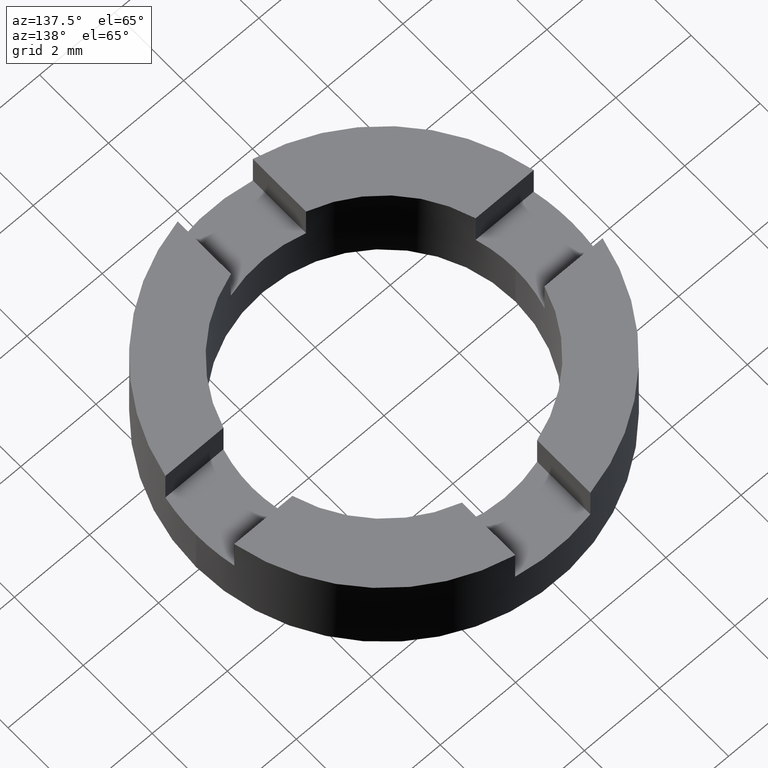
[diagram: clean part render]
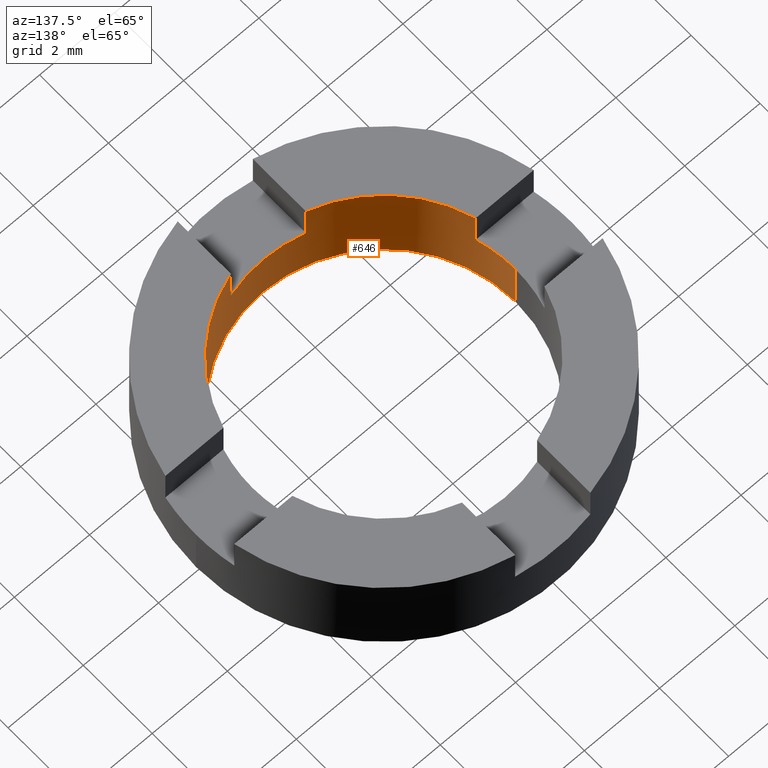
[diagram: same view with one face highlighted and labeled with its STEP entity id]
A machine part, auxiliary view. The second image highlights one B-rep face of the part: STEP entity #646.
In plain terms, the highlighted cylindrical surface (partial cylindrical patch) has radius 3.5 mm, axis along (-0, -0, -1).
Its self-contained STEP definition (entity closure, byte-faithful):
#3 = FACE_OUTER_BOUND ( 'NONE', #324, .T. ) ;
#6 = CARTESIAN_POINT ( 'NONE',  ( -3.354101966249594557, -1.000000000000301981, 2.500000000000000000 ) ) ;
#9 = CARTESIAN_POINT ( 'NONE',  ( 3.354101966249698030, -0.9999999999999547029, 2.500000000000000000 ) ) ;
#11 = DIRECTION ( 'NONE',  ( -1.000000000000000000, 0.000000000000000000, 0.000000000000000000 ) ) ;
#14 = DIRECTION ( 'NONE',  ( -0.000000000000000000, -0.000000000000000000, -1.000000000000000000 ) ) ;
#19 = DIRECTION ( 'NONE',  ( 1.000000000000000000, 0.000000000000000000, 0.000000000000000000 ) ) ;
#28 = VERTEX_POINT ( 'NONE', #9 ) ;
#37 = CARTESIAN_POINT ( 'NONE',  ( -3.500000000000000000, 0.000000000000000000, 0.000000000000000000 ) ) ;
#38 = ORIENTED_EDGE ( 'NONE', *, *, #468, .F. ) ;
#60 = VERTEX_POINT ( 'NONE', #317 ) ;
#65 = DIRECTION ( 'NONE',  ( 0.000000000000000000, 0.000000000000000000, 1.000000000000000000 ) ) ;
#66 = ORIENTED_EDGE ( 'NONE', *, *, #218, .F. ) ;
#71 = CARTESIAN_POINT ( 'NONE',  ( 0.000000000000000000, 0.000000000000000000, 1.500000000000000000 ) ) ;
#72 = DIRECTION ( 'NONE',  ( -0.000000000000000000, -0.000000000000000000, -1.000000000000000000 ) ) ;
#73 = CIRCLE ( 'NONE', #136, 3.500000000000000000 ) ;
#84 = VECTOR ( 'NONE', #14, 1000.000000000000000 ) ;
#96 = ORIENTED_EDGE ( 'NONE', *, *, #275, .F. ) ;
#98 = VERTEX_POINT ( 'NONE', #37 ) ;
#99 = AXIS2_PLACEMENT_3D ( 'NONE', #488, #540, #196 ) ;
#100 = CIRCLE ( 'NONE', #99, 3.500000000000000000 ) ;
#102 = CIRCLE ( 'NONE', #507, 3.500000000000000000 ) ;
#120 = LINE ( 'NONE', #535, #406 ) ;
#121 = VERTEX_POINT ( 'NONE', #210 ) ;
#125 = LINE ( 'NONE', #486, #660 ) ;
#127 = ORIENTED_EDGE ( 'NONE', *, *, #709, .F. ) ;
#130 = ORIENTED_EDGE ( 'NONE', *, *, #190, .F. ) ;
#131 = CARTESIAN_POINT ( 'NONE',  ( -3.354101966249594557, -1.000000000000301981, 2.500000000000000000 ) ) ;
#136 = AXIS2_PLACEMENT_3D ( 'NONE', #501, #65, #547 ) ;
#137 = LINE ( 'NONE', #753, #139 ) ;
#139 = VECTOR ( 'NONE', #464, 1000.000000000000000 ) ;
#152 = DIRECTION ( 'NONE',  ( 0.000000000000000000, -0.000000000000000000, -1.000000000000000000 ) ) ;
#161 = CARTESIAN_POINT ( 'NONE',  ( 3.354101966249698030, -0.9999999999999547029, 1.500000000000000000 ) ) ;
#164 = EDGE_CURVE ( 'NONE', #60, #28, #102, .T. ) ;
#173 = DIRECTION ( 'NONE',  ( 0.000000000000000000, 0.000000000000000000, -1.000000000000000000 ) ) ;
#174 = CARTESIAN_POINT ( 'NONE',  ( -3.500000000000000000, 0.000000000000000000, 2.500000000000000000 ) ) ;
#190 = EDGE_CURVE ( 'NONE', #389, #28, #120, .T. ) ;
#196 = DIRECTION ( 'NONE',  ( -1.000000000000000000, 0.000000000000000000, 0.000000000000000000 ) ) ;
#200 = CARTESIAN_POINT ( 'NONE',  ( -0.9999999999996526112, -3.354101966249788180, 2.500000000000000000 ) ) ;
#201 = EDGE_CURVE ( 'NONE', #354, #639, #137, .T. ) ;
#206 = DIRECTION ( 'NONE',  ( 0.000000000000000000, 0.000000000000000000, 1.000000000000000000 ) ) ;
#209 = EDGE_CURVE ( 'NONE', #331, #98, #675, .T. ) ;
#210 = CARTESIAN_POINT ( 'NONE',  ( -3.354101966249594557, -1.000000000000301981, 1.500000000000000000 ) ) ;
#215 = VECTOR ( 'NONE', #759, 1000.000000000000000 ) ;
#218 = EDGE_CURVE ( 'NONE', #98, #639, #73, .T. ) ;
#233 = DIRECTION ( 'NONE',  ( 0.000000000000000000, 0.000000000000000000, 1.000000000000000000 ) ) ;
#240 = CIRCLE ( 'NONE', #385, 3.500000000000000000 ) ;
#241 = EDGE_CURVE ( 'NONE', #291, #121, #346, .T. ) ;
#246 = CARTESIAN_POINT ( 'NONE',  ( 0.000000000000000000, 0.000000000000000000, 1.500000000000000000 ) ) ;
#258 = CARTESIAN_POINT ( 'NONE',  ( 1.000000000000347500, -3.354101966249581235, 2.500000000000000000 ) ) ;
#262 = CYLINDRICAL_SURFACE ( 'NONE', #683, 3.500000000000000000 ) ;
#271 = CIRCLE ( 'NONE', #739, 3.500000000000000000 ) ;
#274 = CARTESIAN_POINT ( 'NONE',  ( 3.500000000000000000, 4.286263797015736595E-16, 1.500000000000000000 ) ) ;
#275 = EDGE_CURVE ( 'NONE', #354, #389, #100, .T. ) ;
#287 = DIRECTION ( 'NONE',  ( 0.000000000000000000, 0.000000000000000000, 1.000000000000000000 ) ) ;
#291 = VERTEX_POINT ( 'NONE', #6 ) ;
#299 = CARTESIAN_POINT ( 'NONE',  ( 0.000000000000000000, 0.000000000000000000, 2.500000000000000000 ) ) ;
#315 = ORIENTED_EDGE ( 'NONE', *, *, #498, .F. ) ;
#317 = CARTESIAN_POINT ( 'NONE',  ( 1.000000000000347500, -3.354101966249581235, 2.500000000000000000 ) ) ;
#324 = EDGE_LOOP ( 'NONE', ( #96, #616, #66, #648, #315, #624, #564, #38, #127, #341, #653, #130 ) ) ;
#331 = VERTEX_POINT ( 'NONE', #415 ) ;
#341 = ORIENTED_EDGE ( 'NONE', *, *, #763, .F. ) ;
#346 = LINE ( 'NONE', #131, #84 ) ;
#354 = VERTEX_POINT ( 'NONE', #274 ) ;
#385 = AXIS2_PLACEMENT_3D ( 'NONE', #246, #152, #699 ) ;
#389 = VERTEX_POINT ( 'NONE', #161 ) ;
#391 = CARTESIAN_POINT ( 'NONE',  ( 3.500000000000000000, 4.286263797015736595E-16, 0.000000000000000000 ) ) ;
#406 = VECTOR ( 'NONE', #206, 1000.000000000000000 ) ;
#415 = CARTESIAN_POINT ( 'NONE',  ( -3.500000000000000000, 0.000000000000000000, 1.500000000000000000 ) ) ;
#429 = VECTOR ( 'NONE', #72, 1000.000000000000000 ) ;
#442 = DIRECTION ( 'NONE',  ( 0.000000000000000000, 0.000000000000000000, 1.000000000000000000 ) ) ;
#448 = CARTESIAN_POINT ( 'NONE',  ( 0.000000000000000000, 0.000000000000000000, 2.500000000000000000 ) ) ;
#449 = CARTESIAN_POINT ( 'NONE',  ( -0.9999999999996526112, -3.354101966249788180, 1.500000000000000000 ) ) ;
#464 = DIRECTION ( 'NONE',  ( -0.000000000000000000, -0.000000000000000000, -1.000000000000000000 ) ) ;
#468 = EDGE_CURVE ( 'NONE', #659, #573, #125, .T. ) ;
#486 = CARTESIAN_POINT ( 'NONE',  ( -0.9999999999996526112, -3.354101966249788180, 2.500000000000000000 ) ) ;
#488 = CARTESIAN_POINT ( 'NONE',  ( 0.000000000000000000, 0.000000000000000000, 1.500000000000000000 ) ) ;
#498 = EDGE_CURVE ( 'NONE', #121, #331, #240, .T. ) ;
#501 = CARTESIAN_POINT ( 'NONE',  ( 0.000000000000000000, 0.000000000000000000, 0.000000000000000000 ) ) ;
#507 = AXIS2_PLACEMENT_3D ( 'NONE', #448, #442, #19 ) ;
#514 = AXIS2_PLACEMENT_3D ( 'NONE', #694, #287, #541 ) ;
#520 = CIRCLE ( 'NONE', #514, 3.500000000000000000 ) ;
#535 = CARTESIAN_POINT ( 'NONE',  ( 3.354101966249698030, -0.9999999999999547029, 2.500000000000000000 ) ) ;
#540 = DIRECTION ( 'NONE',  ( 0.000000000000000000, 0.000000000000000000, -1.000000000000000000 ) ) ;
#541 = DIRECTION ( 'NONE',  ( 1.000000000000000000, 0.000000000000000000, 0.000000000000000000 ) ) ;
#547 = DIRECTION ( 'NONE',  ( 1.000000000000000000, 0.000000000000000000, 0.000000000000000000 ) ) ;
#564 = ORIENTED_EDGE ( 'NONE', *, *, #643, .T. ) ;
#573 = VERTEX_POINT ( 'NONE', #200 ) ;
#616 = ORIENTED_EDGE ( 'NONE', *, *, #201, .T. ) ;
#624 = ORIENTED_EDGE ( 'NONE', *, *, #241, .F. ) ;
#637 = VERTEX_POINT ( 'NONE', #698 ) ;
#639 = VERTEX_POINT ( 'NONE', #391 ) ;
#643 = EDGE_CURVE ( 'NONE', #291, #573, #520, .T. ) ;
#646 = ADVANCED_FACE ( 'NONE', ( #3 ), #262, .F. ) ;
#648 = ORIENTED_EDGE ( 'NONE', *, *, #209, .F. ) ;
#653 = ORIENTED_EDGE ( 'NONE', *, *, #164, .T. ) ;
#659 = VERTEX_POINT ( 'NONE', #449 ) ;
#660 = VECTOR ( 'NONE', #233, 1000.000000000000000 ) ;
#675 = LINE ( 'NONE', #174, #429 ) ;
#683 = AXIS2_PLACEMENT_3D ( 'NONE', #299, #741, #11 ) ;
#694 = CARTESIAN_POINT ( 'NONE',  ( 0.000000000000000000, 0.000000000000000000, 2.500000000000000000 ) ) ;
#698 = CARTESIAN_POINT ( 'NONE',  ( 1.000000000000347500, -3.354101966249581235, 1.500000000000000000 ) ) ;
#699 = DIRECTION ( 'NONE',  ( -1.000000000000000000, 0.000000000000000000, 0.000000000000000000 ) ) ;
#709 = EDGE_CURVE ( 'NONE', #637, #659, #271, .T. ) ;
#739 = AXIS2_PLACEMENT_3D ( 'NONE', #71, #173, #756 ) ;
#741 = DIRECTION ( 'NONE',  ( -0.000000000000000000, -0.000000000000000000, -1.000000000000000000 ) ) ;
#753 = CARTESIAN_POINT ( 'NONE',  ( 3.500000000000000000, 4.286263797015736595E-16, 2.500000000000000000 ) ) ;
#756 = DIRECTION ( 'NONE',  ( -1.000000000000000000, 0.000000000000000000, 0.000000000000000000 ) ) ;
#759 = DIRECTION ( 'NONE',  ( -0.000000000000000000, -0.000000000000000000, -1.000000000000000000 ) ) ;
#763 = EDGE_CURVE ( 'NONE', #60, #637, #772, .T. ) ;
#772 = LINE ( 'NONE', #258, #215 ) ;